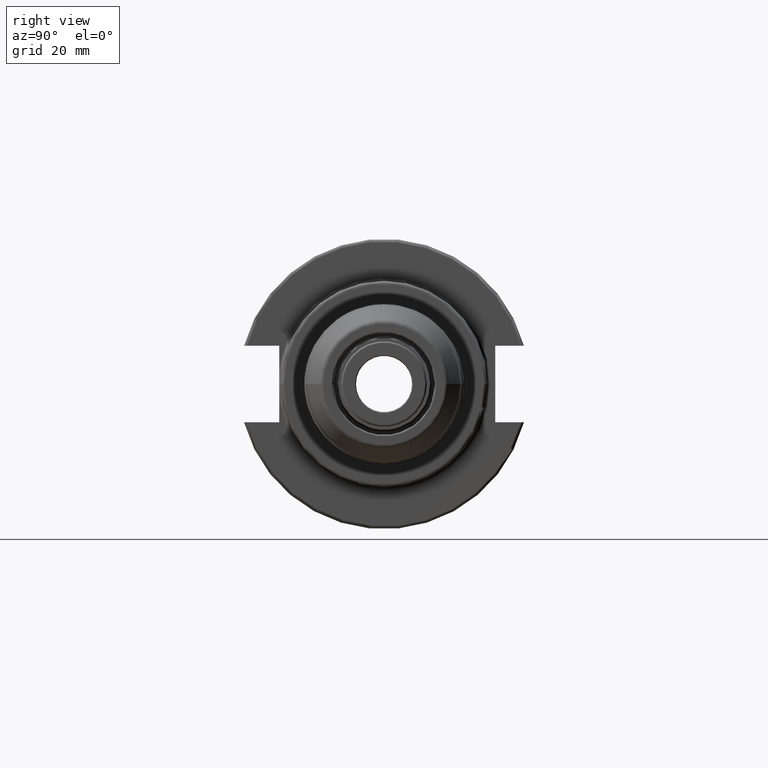
[diagram: clean part render]
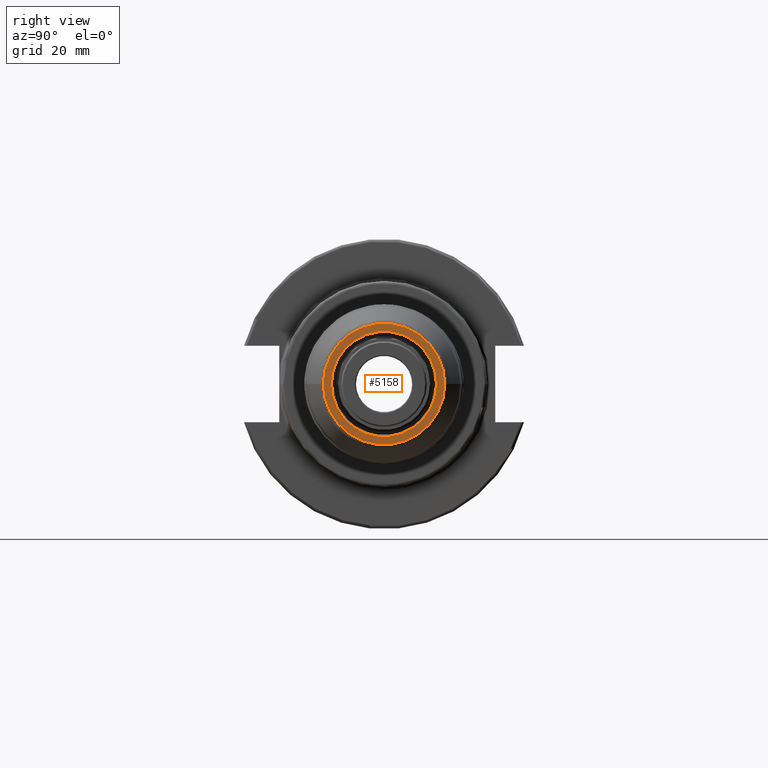
[diagram: same view with one face highlighted and labeled with its STEP entity id]
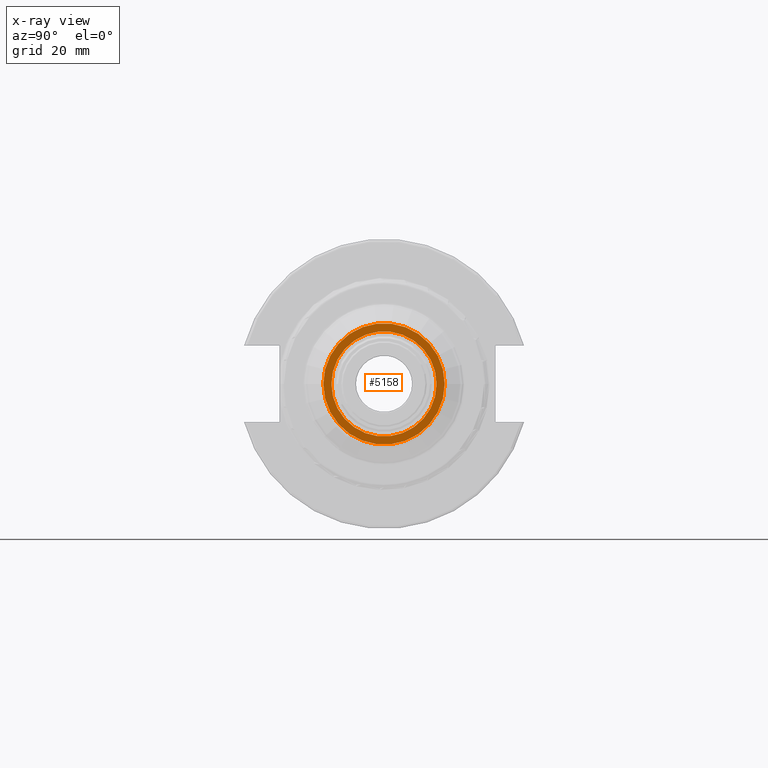
[diagram: x-ray of the same camera — body ghosted, the highlighted face saturated]
A machine part, right view. The second image highlights one B-rep face of the part: STEP entity #5158.
The next image is the same camera in x-ray: the body ghosted, the highlighted face saturated — about 0% of this face is hidden behind the body in this view.
In plain terms, the highlighted planar face has unit normal (1, 0, 0).
Its self-contained STEP definition (entity closure, byte-faithful):
#3041=CARTESIAN_POINT('',(0.E0,0.E0,0.E0));
#3042=DIRECTION('',(-1.E0,0.E0,0.E0));
#3043=DIRECTION('',(0.E0,1.E0,0.E0));
#3044=AXIS2_PLACEMENT_3D('',#3041,#3042,#3043);
#3046=CARTESIAN_POINT('',(0.E0,0.E0,0.E0));
#3047=DIRECTION('',(-1.E0,0.E0,0.E0));
#3048=DIRECTION('',(0.E0,-1.E0,0.E0));
#3049=AXIS2_PLACEMENT_3D('',#3046,#3047,#3048);
#3051=CARTESIAN_POINT('',(0.E0,0.E0,0.E0));
#3052=DIRECTION('',(1.E0,0.E0,0.E0));
#3053=DIRECTION('',(0.E0,1.E0,-7.940650742948E-10));
#3054=AXIS2_PLACEMENT_3D('',#3051,#3052,#3053);
#3056=CARTESIAN_POINT('',(0.E0,0.E0,0.E0));
#3057=DIRECTION('',(1.E0,0.E0,0.E0));
#3058=DIRECTION('',(0.E0,-1.E0,7.940651967595E-10));
#3059=AXIS2_PLACEMENT_3D('',#3056,#3057,#3058);
#4993=CARTESIAN_POINT('',(0.E0,1.781680369649E1,0.E0));
#4994=CARTESIAN_POINT('',(0.E0,-1.781680369649E1,0.E0));
#4995=VERTEX_POINT('',#4993);
#4996=VERTEX_POINT('',#4994);
#5009=CARTESIAN_POINT('',(0.E0,2.057814278734E1,-1.634038448128E-8));
#5010=CARTESIAN_POINT('',(0.E0,-2.057814278734E1,1.634038700137E-8));
#5011=VERTEX_POINT('',#5009);
#5012=VERTEX_POINT('',#5010);
#5141=CARTESIAN_POINT('',(0.E0,0.E0,0.E0));
#5142=DIRECTION('',(1.E0,0.E0,0.E0));
#5143=DIRECTION('',(0.E0,-1.E0,0.E0));
#5144=AXIS2_PLACEMENT_3D('',#5141,#5142,#5143);
#5145=PLANE('',#5144);
#5147=ORIENTED_EDGE('',*,*,#5146,.F.);
#5149=ORIENTED_EDGE('',*,*,#5148,.F.);
#5150=EDGE_LOOP('',(#5147,#5149));
#5151=FACE_OUTER_BOUND('',#5150,.F.);
#5153=ORIENTED_EDGE('',*,*,#5152,.F.);
#5155=ORIENTED_EDGE('',*,*,#5154,.F.);
#5156=EDGE_LOOP('',(#5153,#5155));
#5157=FACE_BOUND('',#5156,.F.);
#5158=ADVANCED_FACE('',(#5151,#5157),#5145,.T.);
#3045=CIRCLE('',#3044,1.781680369649E1);
#3050=CIRCLE('',#3049,1.781680369649E1);
#3055=CIRCLE('',#3054,2.057814278734E1);
#3060=CIRCLE('',#3059,2.057814278734E1);
#5146=EDGE_CURVE('',#5011,#5012,#3055,.T.);
#5148=EDGE_CURVE('',#5012,#5011,#3060,.T.);
#5152=EDGE_CURVE('',#4995,#4996,#3045,.T.);
#5154=EDGE_CURVE('',#4996,#4995,#3050,.T.);